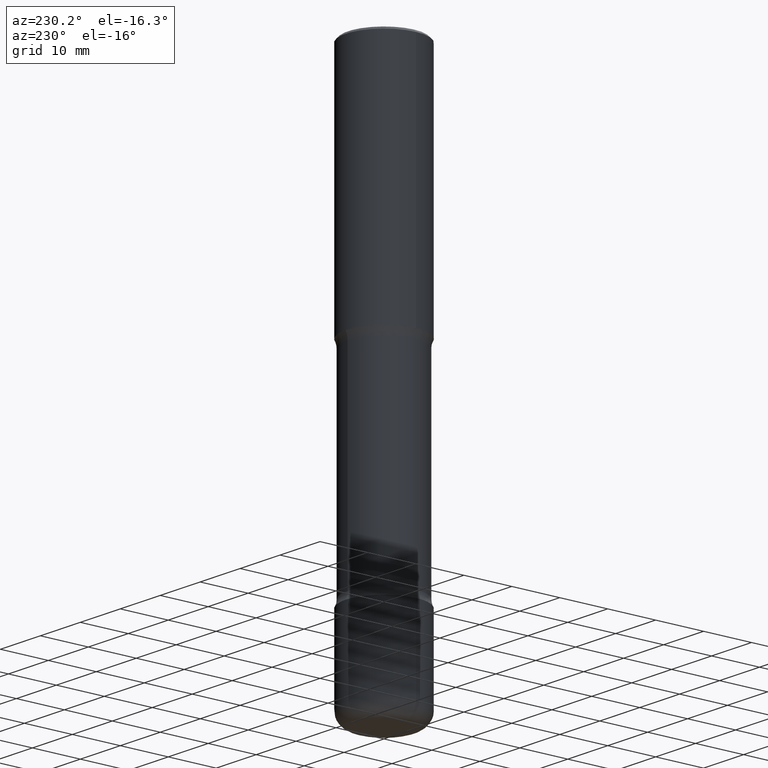
[diagram: clean part render]
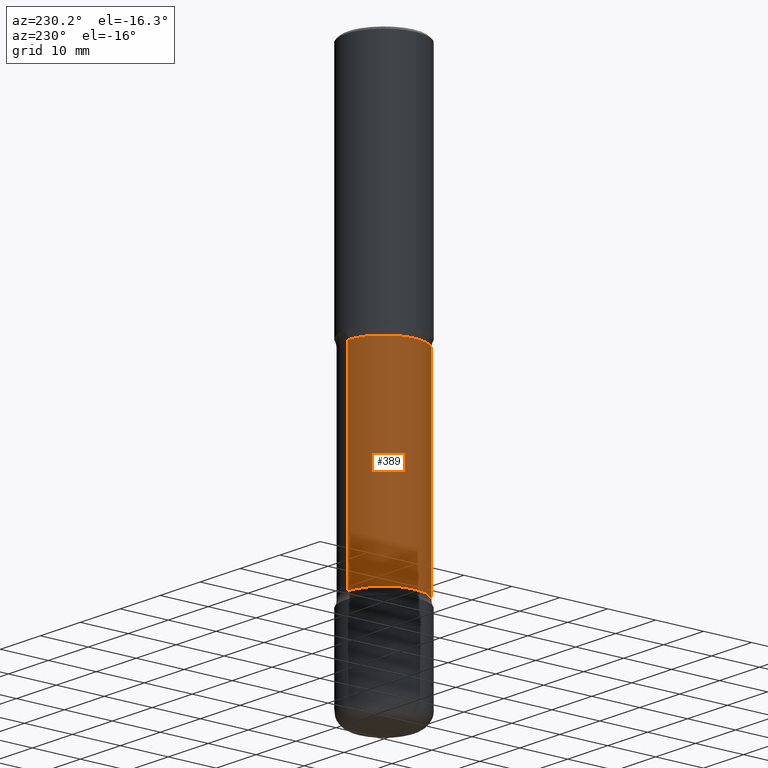
[diagram: same view with one face highlighted and labeled with its STEP entity id]
A machine part, auxiliary view. The second image highlights one B-rep face of the part: STEP entity #389.
In plain terms, the highlighted cylindrical surface (partial cylindrical patch) has radius 7.5946 mm, axis along (0, -0, -1).
Its self-contained STEP definition (entity closure, byte-faithful):
#18 = AXIS2_PLACEMENT_3D ( 'NONE', #535, #372, #489 ) ;
#28 = EDGE_CURVE ( 'NONE', #243, #251, #177, .T. ) ;
#45 = CARTESIAN_POINT ( 'NONE',  ( 2.087905840628304834E-15, 0.2989999999999842784, -4.527600000000000513 ) ) ;
#74 = ORIENTED_EDGE ( 'NONE', *, *, #183, .T. ) ;
#85 = CARTESIAN_POINT ( 'NONE',  ( -2.051288901333576903E-15, -0.2990000000000157532, -4.527599999999998737 ) ) ;
#89 = DIRECTION ( 'NONE',  ( 2.507091165645431514E-29, -3.403234612769116586E-15, -1.000000000000000000 ) ) ;
#95 = CARTESIAN_POINT ( 'NONE',  ( 2.087905840628283535E-15, 0.2989999999999871094, -3.679100920628867399 ) ) ;
#101 = ORIENTED_EDGE ( 'NONE', *, *, #522, .F. ) ;
#122 = DIRECTION ( 'NONE',  ( 6.982962677686265133E-15, 1.000000000000000000, -3.654646145370252101E-15 ) ) ;
#127 = DIRECTION ( 'NONE',  ( 2.507091165645431514E-29, -3.403234612769116586E-15, -1.000000000000000000 ) ) ;
#140 = DIRECTION ( 'NONE',  ( 2.507091165645431514E-29, -3.403234612769116586E-15, -1.000000000000000000 ) ) ;
#177 = CIRCLE ( 'NONE', #250, 0.2989999999999999880 ) ;
#180 = DIRECTION ( 'NONE',  ( 6.982962677686266711E-15, 1.000000000000000000, -3.654646145370252101E-15 ) ) ;
#183 = EDGE_CURVE ( 'NONE', #541, #394, #349, .T. ) ;
#208 = CARTESIAN_POINT ( 'NONE',  ( 8.993361466773209544E-29, -1.285090400181696271E-14, -3.679100920628866511 ) ) ;
#238 = FACE_OUTER_BOUND ( 'NONE', #544, .T. ) ;
#243 = VERTEX_POINT ( 'NONE', #404 ) ;
#250 = AXIS2_PLACEMENT_3D ( 'NONE', #208, #127, #122 ) ;
#251 = VERTEX_POINT ( 'NONE', #95 ) ;
#266 = DIRECTION ( 'NONE',  ( 2.507091165645431514E-29, -3.403234612769116586E-15, -1.000000000000000000 ) ) ;
#269 = EDGE_CURVE ( 'NONE', #394, #251, #336, .T. ) ;
#336 = LINE ( 'NONE', #45, #390 ) ;
#343 = CARTESIAN_POINT ( 'NONE',  ( -2.106001372865868613E-15, -0.2990000000000072600, -2.029599079371131598 ) ) ;
#349 = CIRCLE ( 'NONE', #426, 0.2989999999999999880 ) ;
#368 = VECTOR ( 'NONE', #140, 39.37007874015748143 ) ;
#372 = DIRECTION ( 'NONE',  ( 2.507091165645431514E-29, -3.403234612769116586E-15, -1.000000000000000000 ) ) ;
#389 = ADVANCED_FACE ( 'NONE', ( #238 ), #414, .T. ) ;
#390 = VECTOR ( 'NONE', #266, 39.37007874015748143 ) ;
#394 = VERTEX_POINT ( 'NONE', #501 ) ;
#404 = CARTESIAN_POINT ( 'NONE',  ( -2.106001372865825226E-15, -0.2990000000000128111, -3.679100920628865179 ) ) ;
#414 = CYLINDRICAL_SURFACE ( 'NONE', #18, 0.2989999999999999880 ) ;
#426 = AXIS2_PLACEMENT_3D ( 'NONE', #550, #89, #180 ) ;
#457 = ORIENTED_EDGE ( 'NONE', *, *, #28, .F. ) ;
#489 = DIRECTION ( 'NONE',  ( 6.982962677686266711E-15, 1.000000000000000000, -3.654646145370252101E-15 ) ) ;
#495 = ORIENTED_EDGE ( 'NONE', *, *, #269, .T. ) ;
#501 = CARTESIAN_POINT ( 'NONE',  ( 2.087905840628242119E-15, 0.2989999999999927716, -2.029599079371133818 ) ) ;
#522 = EDGE_CURVE ( 'NONE', #541, #243, #528, .T. ) ;
#528 = LINE ( 'NONE', #85, #368 ) ;
#535 = CARTESIAN_POINT ( 'NONE',  ( 1.112062601272285917E-28, -1.573854543763553237E-14, -4.527599999999999625 ) ) ;
#541 = VERTEX_POINT ( 'NONE', #343 ) ;
#544 = EDGE_LOOP ( 'NONE', ( #101, #74, #495, #457 ) ) ;
#550 = CARTESIAN_POINT ( 'NONE',  ( 4.857909972840073546E-29, -7.237262241822257624E-15, -2.029599079371132930 ) ) ;